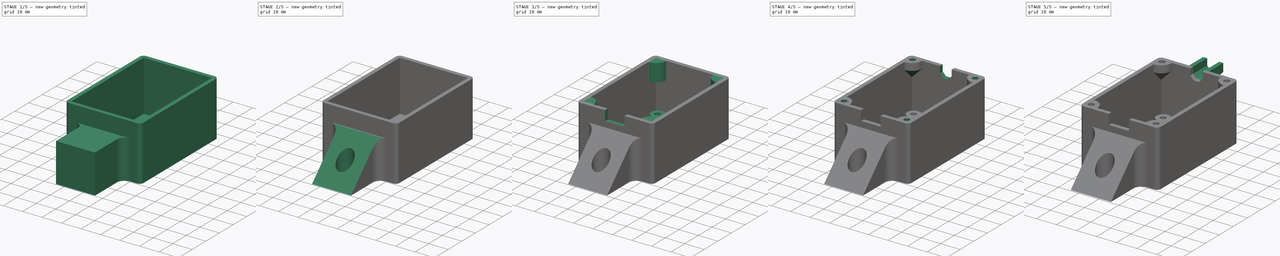
[diagram: build sequence overview — one tinted view per stage of 5, left to right]
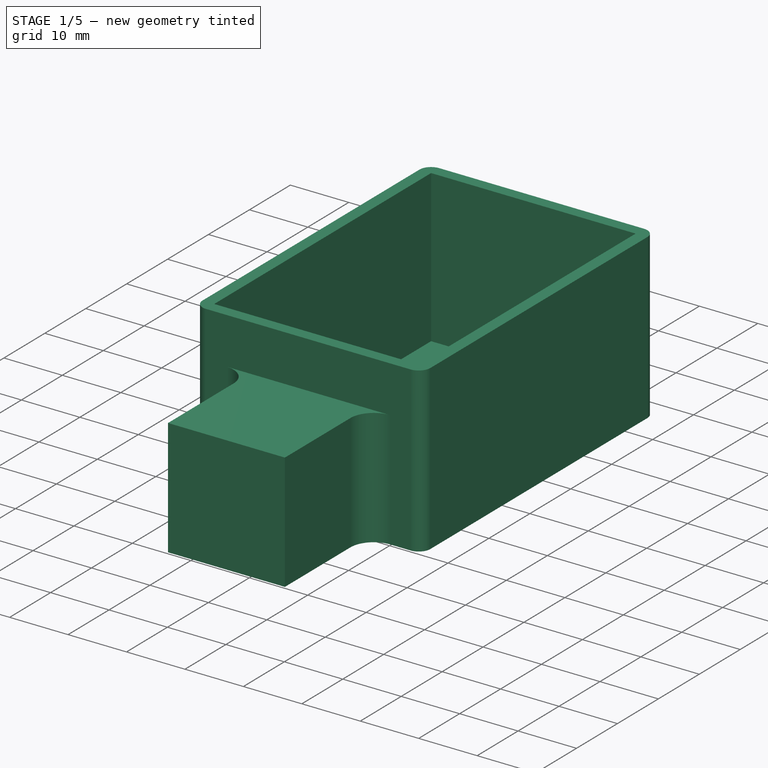
[diagram: stage 1 of 5 — iso view after this stage's code; geometry added in this stage tinted green]
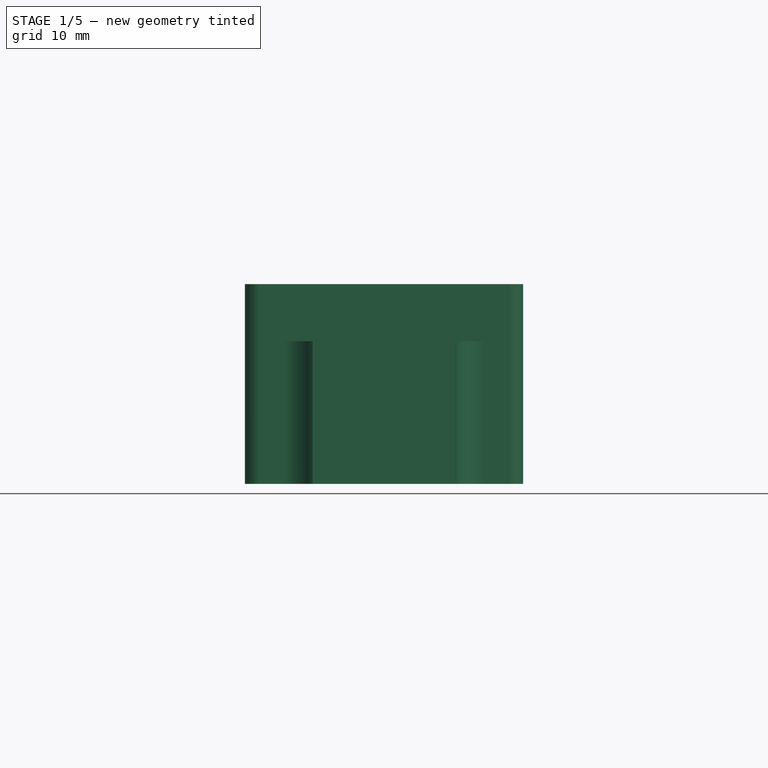
[diagram: stage 1 of 5 — front view after this stage's code; geometry added in this stage tinted green]
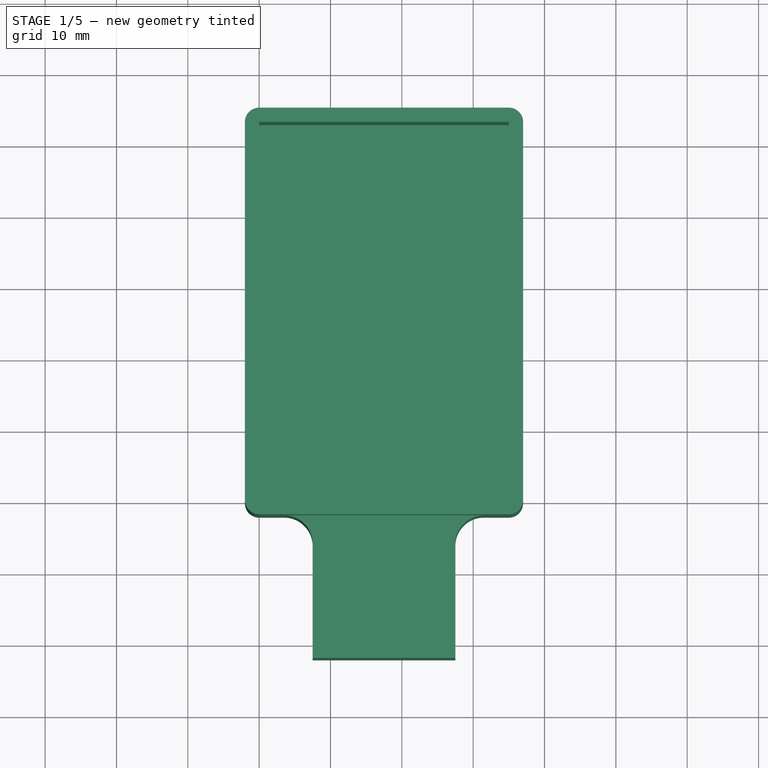
[diagram: stage 1 of 5 — top view after this stage's code; geometry added in this stage tinted green]
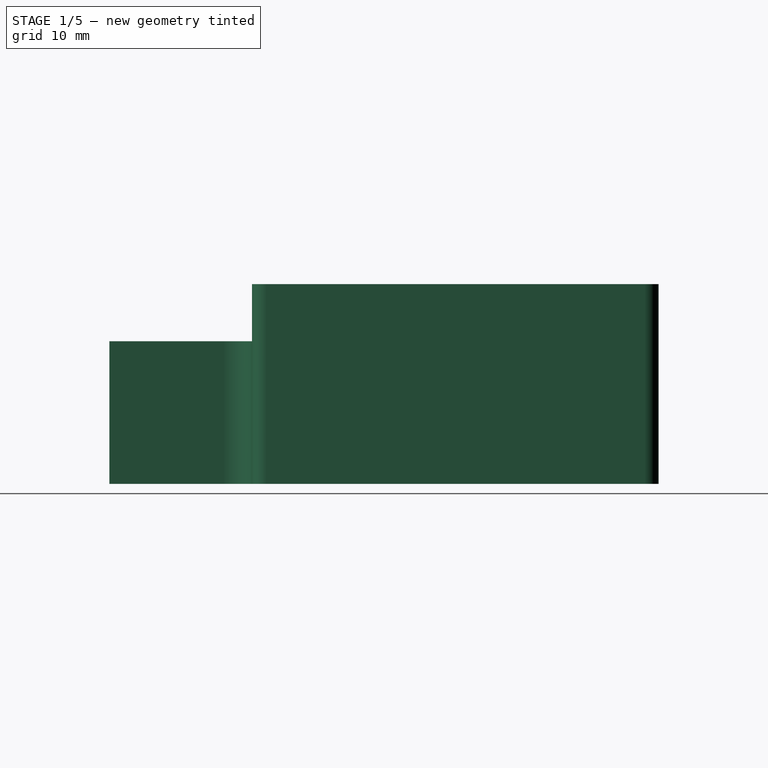
[diagram: stage 1 of 5 — right view after this stage's code; geometry added in this stage tinted green]
FCSTD DOCUMENT  (FreeCAD 0.18.3R)
Label: Laser PCB Box
License: All rights reserved
LicenseURL: http://en.wikipedia.org/wiki/All_rights_reserved
objects: Sketcher::SketchObject×15, PartDesign::Pocket×8, PartDesign::Pad×7, PartDesign::Plane×2, Spreadsheet::Sheet×1, PartDesign::Chamfer×1, PartDesign::Body×1
note: 49 computed .brp shape members not serialized (recipe doc carries the construction recipe); baked Part::Feature solids carry a one-line shape summary decoded from their .brp

FEATURE [Sketcher::SketchObject] Sketch  label="Sketch Base"
  MapMode = 5
  Support = -> [XY_Plane]
  sketch-geometry (4):
    g0: LineSegment StartX=0 StartY=0 StartZ=0 EndX=35 EndY=0 EndZ=0
    g1: LineSegment StartX=35 StartY=0 StartZ=0 EndX=35 EndY=53 EndZ=0
    g2: LineSegment StartX=35 StartY=53 StartZ=0 EndX=0 EndY=53 EndZ=0
    g3: LineSegment StartX=0 StartY=53 StartZ=0 EndX=0 EndY=0 EndZ=0
  constraints (11):
    c: Coincident(g0,g1)
    c: Coincident(g1,g2)
    c: Coincident(g2,g3)
    c: Coincident(g3,g0)
    c: Horizontal(g0)
    c: Horizontal(g2)
    c: Vertical(g1)
    c: Vertical(g3)
    c: Coincident(g0,g-1)
    c: Distance(g0) = 35
    c: Distance(g1) = 53
FEATURE [PartDesign::Pad] Pad  label="Base"
  Length = 2
  Length2 = 100
  Profile = -> Sketch
  Type = 0
FEATURE [Sketcher::SketchObject] Sketch001  label="Sketch Wall"
  ExternalGeometry = -> [Pad]
  MapMode = 5
  Support = -> [XY_Plane]
  sketch-geometry (12):
    g0: LineSegment StartX=0 StartY=0 StartZ=0 EndX=35 EndY=0 EndZ=0
    g1: LineSegment StartX=35 StartY=0 StartZ=0 EndX=35 EndY=53 EndZ=0
    g2: LineSegment StartX=35 StartY=53 StartZ=0 EndX=0 EndY=53 EndZ=0
    g3: LineSegment StartX=0 StartY=53 StartZ=0 EndX=0 EndY=0 EndZ=0
    g4: ArcOfCircle CenterX=0 CenterY=53 CenterZ=0 NormalX=0 NormalY=0 NormalZ=1 AngleXU=0 Radius=2 StartAngle=1.5708 EndAngle=3.14159
    g5: ArcOfCircle CenterX=35 CenterY=53 CenterZ=0 NormalX=0 NormalY=0 NormalZ=1 AngleXU=0 Radius=2 StartAngle=-9e-16 EndAngle=1.5708
    g6: ArcOfCircle CenterX=35 CenterY=0 CenterZ=0 NormalX=0 NormalY=0 NormalZ=1 AngleXU=0 Radius=2 StartAngle=4.71239 EndAngle=6.28319
    g7: ArcOfCircle CenterX=0 CenterY=0 CenterZ=0 NormalX=0 NormalY=0 NormalZ=1 AngleXU=0 Radius=2 StartAngle=3.14159 EndAngle=4.71239
    g8: LineSegment StartX=-4e-16 StartY=-2 StartZ=0 EndX=35 EndY=-2 EndZ=0
    g9: LineSegment StartX=37 StartY=-5e-16 StartZ=0 EndX=37 EndY=53 EndZ=0
    g10: LineSegment StartX=35 StartY=55 StartZ=0 EndX=0 EndY=55 EndZ=0
    g11: LineSegment StartX=-2 StartY=53 StartZ=0 EndX=-2 EndY=0 EndZ=0
  constraints (31):
    c: Coincident(g0,g1)
    c: Coincident(g1,g2)
    c: Coincident(g2,g3)
    c: Coincident(g3,g0)
    c: Horizontal(g0)
    c: Horizontal(g2)
    c: Vertical(g1)
    c: Vertical(g3)
    c: Coincident(g0,g-1)
    c: Coincident(g1,g-3)
    c: Coincident(g4,g2)
    c: PointOnObject(g4,g-2)
    c: Coincident(g5,g1)
    c: Coincident(g6,g0)
    c: PointOnObject(g6,g-1)
    c: Coincident(g7,g0)
    c: PointOnObject(g7,g-2)
    c: PointOnObject(g7,g-1)
    c: Coincident(g8,g7)
    c: Coincident(g8,g6)
    c: Horizontal(g8)
    c: Coincident(g9,g6)
    c: Vertical(g9)
    c: Coincident(g10,g4)
    c: Horizontal(g10)
    c: Coincident(g11,g7)
    c: Vertical(g11)
    c: Tangent(g11,g4) = -1.5708
    c: Tangent(g10,g5) = -1.5708
    c: Tangent(g9,g5) = -1.5708
    c: Distance(g0,g11) = 2
FEATURE [PartDesign::Pad] Pad001  label="Wall"
  BaseFeature = -> Pad
  Length = 28
  Length2 = 100
  Profile = -> Sketch001
  Type = 0
FEATURE [Sketcher::SketchObject] Sketch002  label="Sketch Mount Pad"
  ExternalGeometry = -> [Pad001]
  MapMode = 5
  Support = -> [XY_Plane]
  sketch-geometry (8):
    g0: LineSegment StartX=3.50001 StartY=-2 StartZ=0 EndX=31.5 EndY=-2 EndZ=0
    g1: ArcOfCircle CenterX=3.50001 CenterY=-6 CenterZ=0 NormalX=0 NormalY=0 NormalZ=1 AngleXU=0 Radius=4 StartAngle=0 EndAngle=1.5708
    g2: ArcOfCircle CenterX=31.5 CenterY=-6 CenterZ=0 NormalX=0 NormalY=0 NormalZ=1 AngleXU=0 Radius=4 StartAngle=1.5708 EndAngle=3.14159
    g3: LineSegment StartX=7.50001 StartY=-6 StartZ=0 EndX=7.50001 EndY=-22 EndZ=0
    g4: LineSegment StartX=7.50001 StartY=-22 StartZ=0 EndX=27.5 EndY=-22 EndZ=0
    g5: LineSegment StartX=27.5 StartY=-22 StartZ=0 EndX=27.5 EndY=-6 EndZ=0
    g6: LineSegment [constr] StartX=-4e-16 StartY=-2 StartZ=0 EndX=3.50001 EndY=-2 EndZ=0
    g7: LineSegment [constr] StartX=31.5 StartY=-2 StartZ=0 EndX=35 EndY=-2 EndZ=0
  constraints (23):
    c: PointOnObject(g0,g-3)
    c: PointOnObject(g0,g-3)
    c: Coincident(g1,g0)
    c: Coincident(g2,g0)
    c: Vertical(g0,g1)
    c: Vertical(g0,g2)
    c: Horizontal(g2,g2)
    c: Horizontal(g2,g1)
    c: Horizontal(g1,g1)
    c: Tangent(g1,g3) = 1.5708
    c: Coincident(g3,g4)
    c: Horizontal(g4)
    c: Coincident(g4,g5)
    c: Coincident(g5,g2)
    c: Vertical(g5)
    c: Distance(g4) = 20
    c: Radius(g1) = 4
    c: Coincident(g6,g-3)
    c: Coincident(g6,g0)
    c: Coincident(g7,g0)
    c: Coincident(g7,g-3)
    c: Equal(g6,g7)
    c: Distance(g4,g0) = 20
FEATURE [PartDesign::Pad] Pad002  label="Mount Pad"
  BaseFeature = -> Pad001
  Length = 20
  Length2 = 100
  Profile = -> Sketch002
  Type = 0
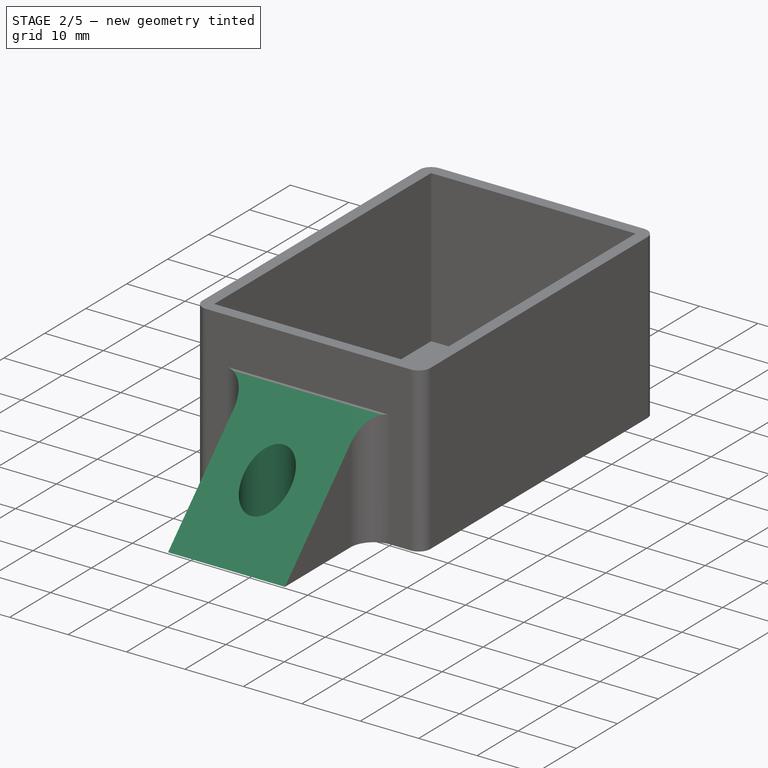
[diagram: stage 2 of 5 — iso view after this stage's code; geometry added in this stage tinted green]
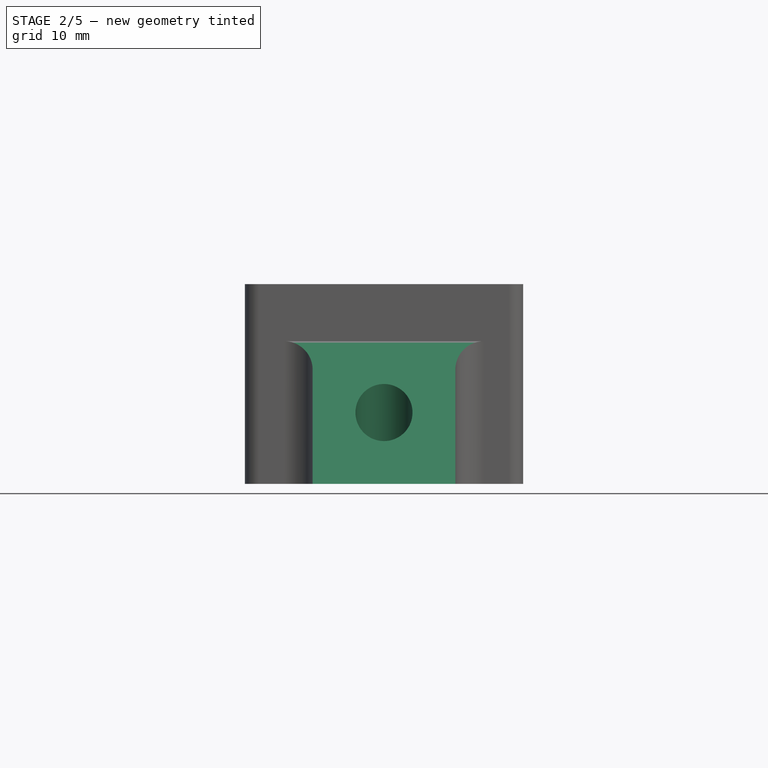
[diagram: stage 2 of 5 — front view after this stage's code; geometry added in this stage tinted green]
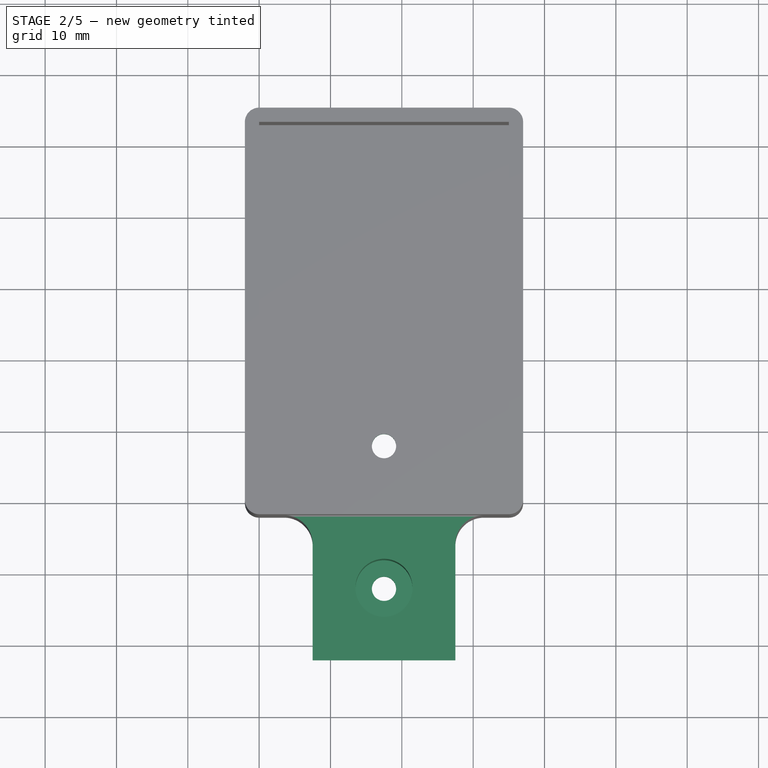
[diagram: stage 2 of 5 — top view after this stage's code; geometry added in this stage tinted green]
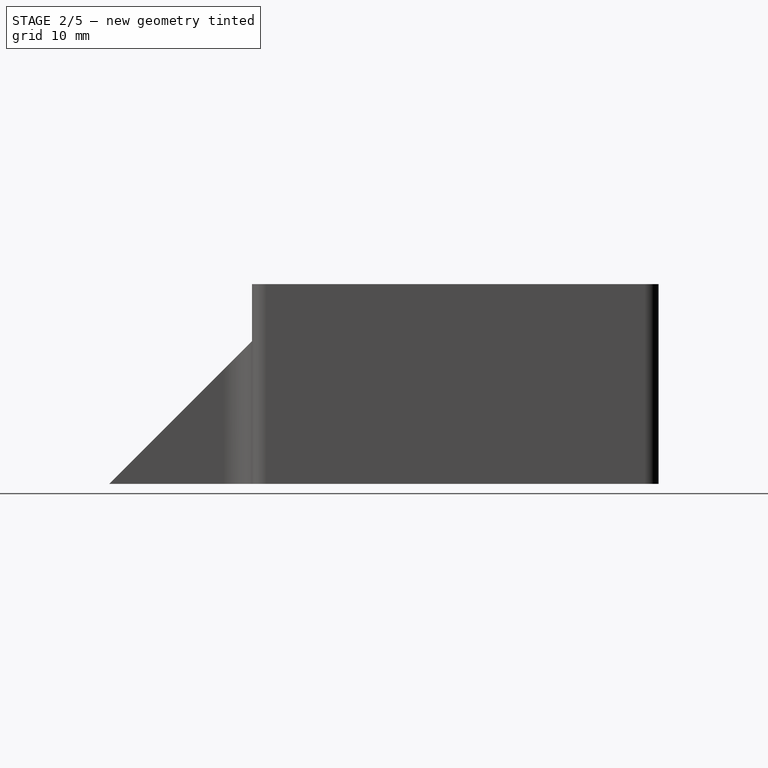
[diagram: stage 2 of 5 — right view after this stage's code; geometry added in this stage tinted green]
FEATURE [Sketcher::SketchObject] Sketch003  label="Sketch Mount Angled Cut"
  ExternalGeometry = -> [Pad002]
  MapMode = 5
  Placement = pos=(-2,0,0) rot=(0.57735,-0.57735,-0.57735;2.0944rad)
  Support = -> [Pad002]
  sketch-geometry (3):
    g0: LineSegment StartX=22 StartY=0 StartZ=0 EndX=22 EndY=20 EndZ=0
    g1: LineSegment StartX=22 StartY=20 StartZ=0 EndX=2 EndY=20 EndZ=0
    g2: LineSegment StartX=2 StartY=20 StartZ=0 EndX=22 EndY=0 EndZ=0
  constraints (7):
    c: Coincident(g-3,g0)
    c: Coincident(g0,g-3)
    c: Coincident(g0,g1)
    c: Coincident(g2,g0)
    c: Angle(g2,g-1) = 0.785398
    c: Coincident(g2,g1)
    c: Coincident(g1,g-4)
FEATURE [PartDesign::Pocket] Pocket  label="Mount Angled Cut"
  BaseFeature = -> Pad002
  Length = 5
  Length2 = 100
  Profile = -> Sketch003
  Type = 1
FEATURE [Sketcher::SketchObject] Sketch004  label="Sketch Mount Holes"
  ExternalGeometry = -> [Pocket]
  MapMode = 5
  Placement = pos=(0,0,0) rot=(1,0,0;3.14159rad)
  Support = -> [Pocket]
  expr: Constraints[7] = Screws.m3tD
  sketch-geometry (3):
    g0: Circle CenterX=17.5 CenterY=12 CenterZ=0 NormalX=0 NormalY=0 NormalZ=1 AngleXU=0 Radius=1.7
    g1: Circle CenterX=17.5 CenterY=-8 CenterZ=0 NormalX=0 NormalY=0 NormalZ=1 AngleXU=0 Radius=1.7
    g2: LineSegment [constr] StartX=17.5 StartY=12 StartZ=0 EndX=17.5 EndY=22 EndZ=0
  constraints (8):
    c: Equal(g1,g0)
    c: Vertical(g1,g0)
    c: Coincident(g2,g0)
    c: PointOnObject(g2,g-3)
    c: Symmetric(g-3,g-3,g2)
    c: Distance(g2) = 10
    c: Distance(g1,g-3) = 30
    c: Diameter(g1) = 3.4
FEATURE [PartDesign::Pocket] Pocket001  label="Mount Holes"
  BaseFeature = -> Pocket
  Length = 5
  Length2 = 100
  Profile = -> Sketch004
  Type = 1
FEATURE [Sketcher::SketchObject] Sketch005  label="Sketch Screw Head Cut"
  ExternalGeometry = -> [Pocket001]
  MapMode = 5
  Placement = pos=(0,0,28) rot=(0,0,1;0rad)
  Support = -> [Pocket001]
  sketch-geometry (1):
    g0: Circle CenterX=17.5 CenterY=-12 CenterZ=0 NormalX=0 NormalY=0 NormalZ=1 AngleXU=0 Radius=4
  constraints (2):
    c: Coincident(g0,g-3)
    c: Diameter(g0) = 8
FEATURE [PartDesign::Pocket] Pocket002  label="Screw Head Cut"
  BaseFeature = -> Pocket001
  Length = 26
  Length2 = 100
  Profile = -> Sketch005
  Type = 0
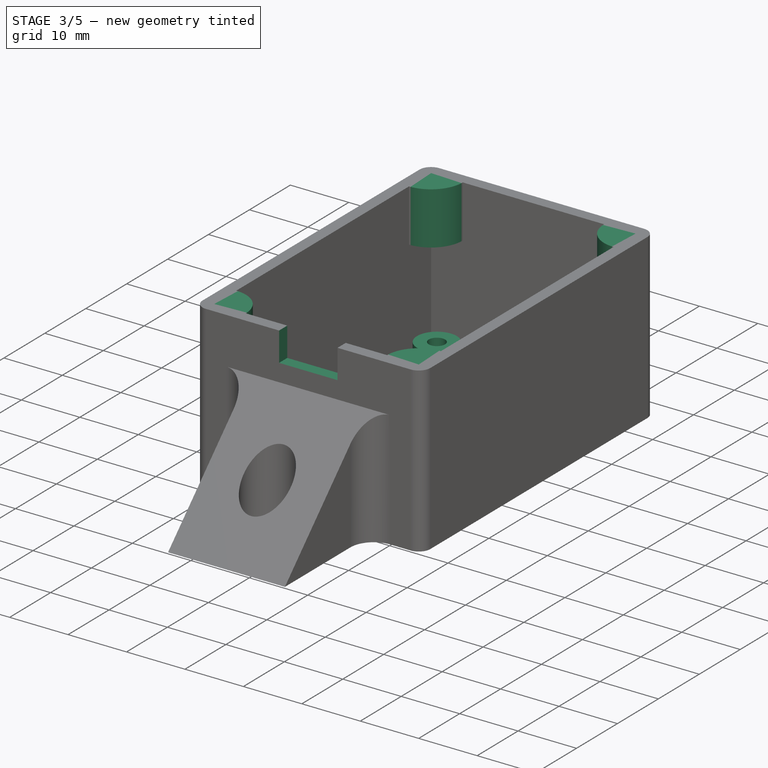
[diagram: stage 3 of 5 — iso view after this stage's code; geometry added in this stage tinted green]
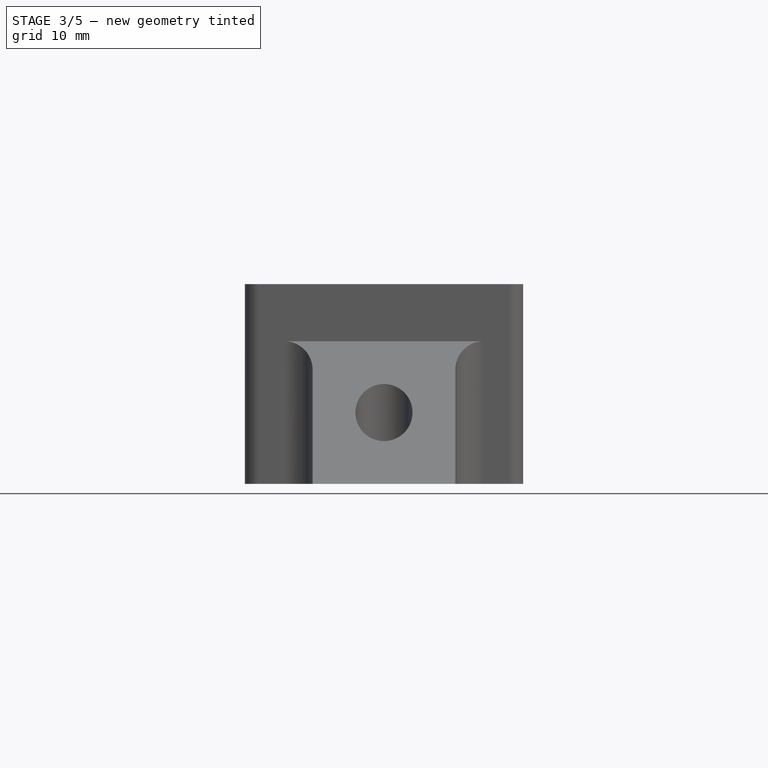
[diagram: stage 3 of 5 — front view after this stage's code; geometry added in this stage tinted green]
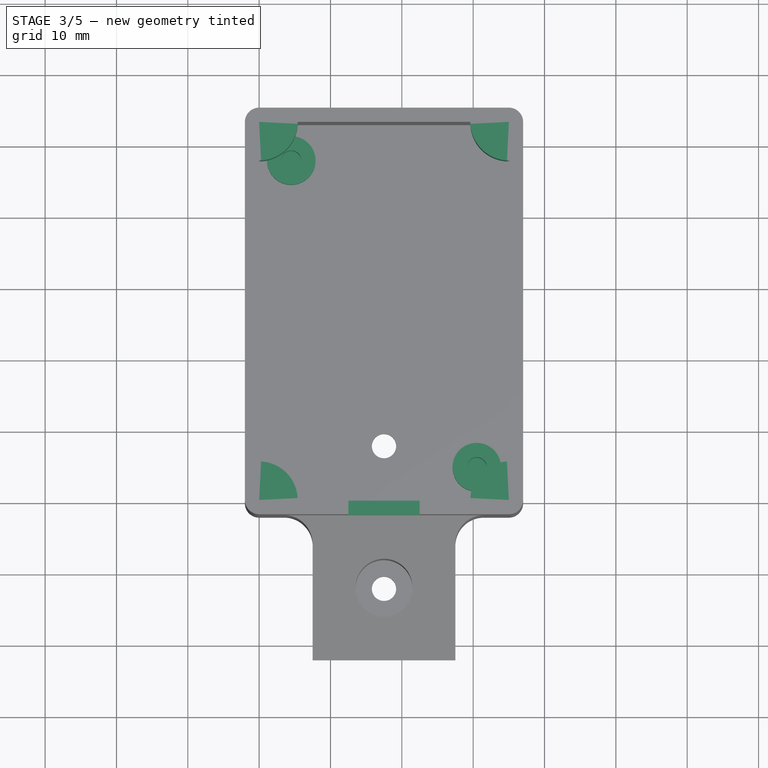
[diagram: stage 3 of 5 — top view after this stage's code; geometry added in this stage tinted green]
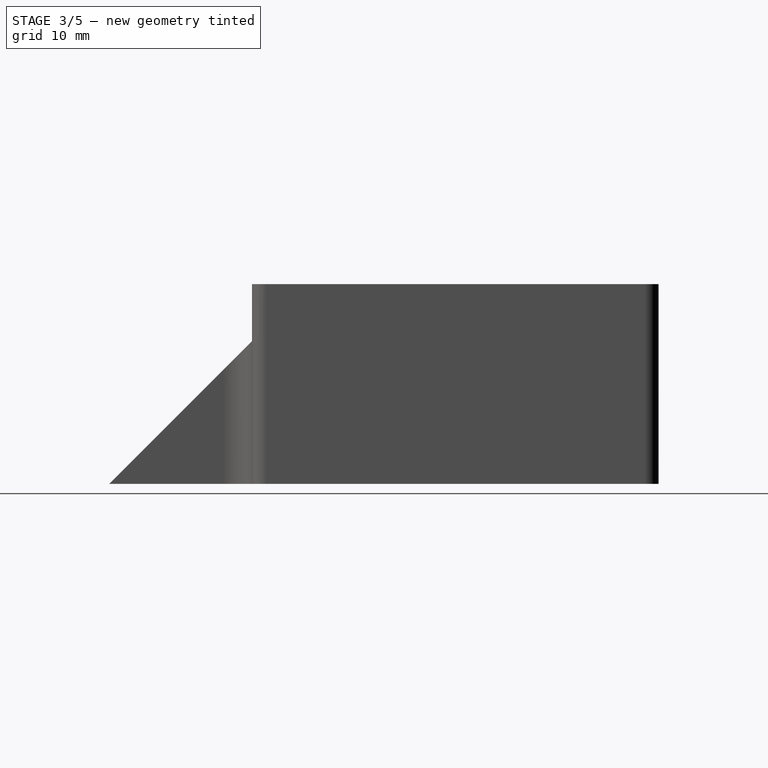
[diagram: stage 3 of 5 — right view after this stage's code; geometry added in this stage tinted green]
FEATURE [Sketcher::SketchObject] Sketch006  label="Sketch PCB Stands"
  ExternalGeometry = -> [Pocket002]
  MapMode = 5
  Placement = pos=(0,0,2) rot=(0,0,1;0rad)
  Support = -> [Pocket002]
  sketch-geometry (6):
    g0: Circle CenterX=4.5 CenterY=48 CenterZ=0 NormalX=0 NormalY=0 NormalZ=1 AngleXU=0 Radius=3.4
    g1: Circle CenterX=30.5 CenterY=5 CenterZ=0 NormalX=0 NormalY=0 NormalZ=1 AngleXU=0 Radius=3.4
    g2: LineSegment [constr] StartX=4.5 StartY=48 StartZ=0 EndX=0 EndY=48 EndZ=0
    g3: LineSegment [constr] StartX=4.5 StartY=48 StartZ=0 EndX=4.5 EndY=53 EndZ=0
    g4: LineSegment [constr] StartX=30.5 StartY=5 StartZ=0 EndX=30.5 EndY=0 EndZ=0
    g5: LineSegment [constr] StartX=30.5 StartY=5 StartZ=0 EndX=35 EndY=5 EndZ=0
  constraints (18):
    c: Coincident(g2,g0)
    c: PointOnObject(g2,g-2)
    c: Horizontal(g2)
    c: Coincident(g3,g0)
    c: PointOnObject(g3,g-3)
    c: Vertical(g3)
    c: Coincident(g4,g1)
    c: PointOnObject(g4,g-4)
    c: Vertical(g4)
    c: Coincident(g5,g1)
    c: PointOnObject(g5,g-5)
    c: Horizontal(g5)
    c: Equal(g2,g5)
    c: Equal(g3,g4)
    c: DistanceY(g1,g0) = 43
    c: Equal(g1,g0)
    c: DistanceX(g0,g1) = 26
    c: Diameter(g0) = 6.8
FEATURE [PartDesign::Pad] Pad003  label="PCB Stands"
  BaseFeature = -> Pocket002
  Length = 3
  Length2 = 100
  Profile = -> Sketch006
  Type = 0
FEATURE [Sketcher::SketchObject] Sketch007  label="Sketch PCB Holes"
  ExternalGeometry = -> [Pad003]
  MapMode = 5
  Placement = pos=(0,0,5) rot=(0,0,1;0rad)
  Support = -> [Pad003]
  expr: Constraints[3] = Screws.m3d
  sketch-geometry (2):
    g0: Circle CenterX=4.5 CenterY=48 CenterZ=0 NormalX=0 NormalY=0 NormalZ=1 AngleXU=0 Radius=1.4
    g1: Circle CenterX=30.5 CenterY=5 CenterZ=0 NormalX=0 NormalY=0 NormalZ=1 AngleXU=0 Radius=1.4
  constraints (4):
    c: Coincident(g0,g-3)
    c: Coincident(g1,g-4)
    c: Equal(g0,g1)
    c: Diameter(g0) = 2.8
FEATURE [PartDesign::Pocket] Pocket003  label="PCB Holes"
  BaseFeature = -> Pad003
  Length = 4.8
  Length2 = 100
  Profile = -> Sketch007
  Type = 0
FEATURE [Sketcher::SketchObject] Sketch008  label="Sketch Wiring Cut Bottom"
  ExternalGeometry = -> [Pocket003]
  MapMode = 5
  Placement = pos=(0,-2,0) rot=(1,0,0;1.5708rad)
  Support = -> [Pocket003]
  sketch-geometry (6):
    g0: LineSegment StartX=12.5 StartY=28 StartZ=0 EndX=22.5 EndY=28 EndZ=0
    g1: LineSegment StartX=22.5 StartY=28 StartZ=0 EndX=22.5 EndY=23 EndZ=0
    g2: LineSegment StartX=22.5 StartY=23 StartZ=0 EndX=12.5 EndY=23 EndZ=0
    g3: LineSegment StartX=12.5 StartY=23 StartZ=0 EndX=12.5 EndY=28 EndZ=0
    g4: LineSegment [constr] StartX=-4e-16 StartY=28 StartZ=0 EndX=12.5 EndY=28 EndZ=0
    g5: LineSegment [constr] StartX=22.5 StartY=28 StartZ=0 EndX=35 EndY=28 EndZ=0
  constraints (16):
    c: Coincident(g0,g1)
    c: Coincident(g1,g2)
    c: Coincident(g2,g3)
    c: Coincident(g3,g0)
    c: Horizontal(g0)
    c: Horizontal(g2)
    c: Vertical(g1)
    c: Vertical(g3)
    c: PointOnObject(g0,g-3)
    c: Coincident(g4,g-3)
    c: Coincident(g4,g0)
    c: Coincident(g5,g0)
    c: Coincident(g5,g-3)
    c: Equal(g4,g5)
    c: Distance(g3) = 5
    c: Distance(g2) = 10
FEATURE [PartDesign::Pocket] Pocket004  label="Wiring Cut Bottom"
  BaseFeature = -> Pocket003
  Length = 5
  Length2 = 100
  Profile = -> Sketch008
  Type = 0
FEATURE [Sketcher::SketchObject] Sketch009  label="Sketch Lid Mount Pads"
  ExternalGeometry = -> [Pocket004]
  MapMode = 5
  Placement = pos=(0,0,28) rot=(0,0,1;0rad)
  Support = -> [Pocket004]
  sketch-geometry (12):
    g0: ArcOfCircle CenterX=0 CenterY=53 CenterZ=0 NormalX=0 NormalY=0 NormalZ=1 AngleXU=0 Radius=5.4 StartAngle=4.71239 EndAngle=6.28319
    g1: ArcOfCircle CenterX=35 CenterY=0 CenterZ=0 NormalX=0 NormalY=0 NormalZ=1 AngleXU=0 Radius=5.4 StartAngle=1.5708 EndAngle=3.14159
    g2: LineSegment StartX=29.6 StartY=0 StartZ=0 EndX=35 EndY=0 EndZ=0
    g3: LineSegment StartX=35 StartY=0 StartZ=0 EndX=35 EndY=5.4 EndZ=0
    g4: LineSegment StartX=-1e-15 StartY=47.6 StartZ=0 EndX=0 EndY=53 EndZ=0
    g5: LineSegment StartX=0 StartY=53 StartZ=0 EndX=5.4 EndY=53 EndZ=0
    g6: LineSegment StartX=29.6 StartY=53 StartZ=0 EndX=35 EndY=53 EndZ=0
    g7: LineSegment StartX=35 StartY=53 StartZ=0 EndX=35 EndY=47.6 EndZ=0
    g8: LineSegment StartX=5.4 StartY=0 StartZ=0 EndX=0 EndY=0 EndZ=0
    g9: LineSegment StartX=0 StartY=0 StartZ=0 EndX=0 EndY=5.4 EndZ=0
    g10: ArcOfCircle CenterX=0 CenterY=0 CenterZ=0 NormalX=0 NormalY=0 NormalZ=1 AngleXU=0 Radius=5.4 StartAngle=0 EndAngle=1.5708
    g11: ArcOfCircle CenterX=35 CenterY=53 CenterZ=0 NormalX=0 NormalY=0 NormalZ=1 AngleXU=0 Radius=5.4 StartAngle=3.14159 EndAngle=4.71239
  constraints (32):
    c: PointOnObject(g0,g-2)
    c: Vertical(g1,g1)
    c: Equal(g0,g1)
    c: Coincident(g1,g2)
    c: Coincident(g2,g3)
    c: Coincident(g3,g1)
    c: Coincident(g0,g4)
    c: Coincident(g4,g5)
    c: Coincident(g5,g0)
    c: Radius(g0) = 5.4
    c: Coincident(g4,g0)
    c: Coincident(g6,g7)
    c: Vertical(g7)
    c: PointOnObject(g8,g-1)
    c: Coincident(g8,g-1)
    c: Coincident(g8,g9)
    c: PointOnObject(g9,g-2)
    c: Coincident(g10,g8)
    c: Coincident(g10,g8)
    c: Coincident(g10,g9)
    c: Coincident(g11,g6)
    c: Coincident(g11,g7)
    c: Coincident(g11,g6)
    c: Equal(g10,g11)
    c: Equal(g11,g0)
    c: Coincident(g1,g2)
    c: Coincident(g1,g-4)
    c: Horizontal(g2)
    c: Coincident(g0,g-3)
    c: Horizontal(g5)
    c: Coincident(g6,g-4)
    c: Horizontal(g6)
FEATURE [PartDesign::Pad] Pad004  label="Lid Mount Pads"
  BaseFeature = -> Pocket004
  Length = 9
  Length2 = 100
  Profile = -> Sketch009
  Reversed = true
  Type = 0
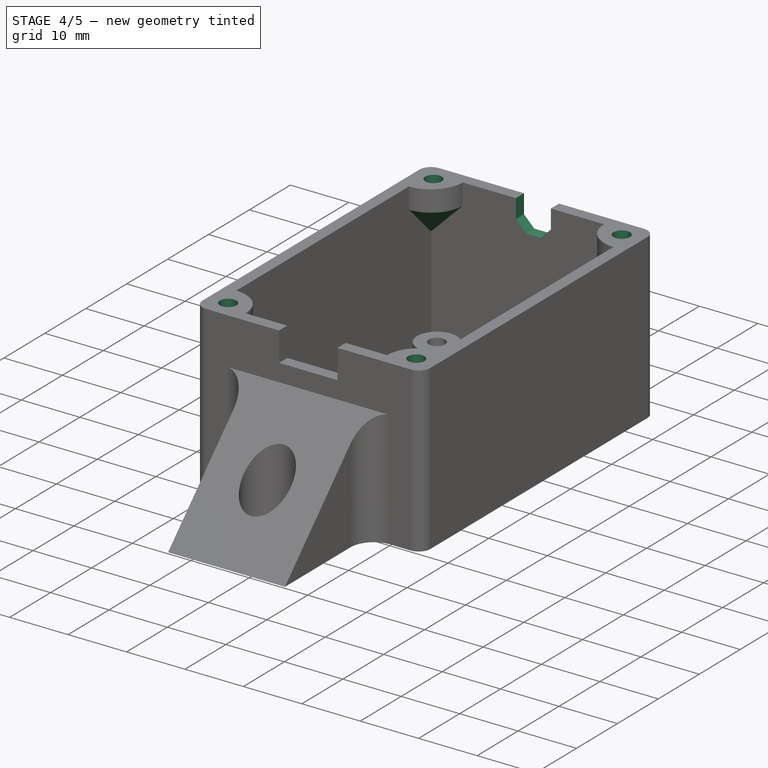
[diagram: stage 4 of 5 — iso view after this stage's code; geometry added in this stage tinted green]
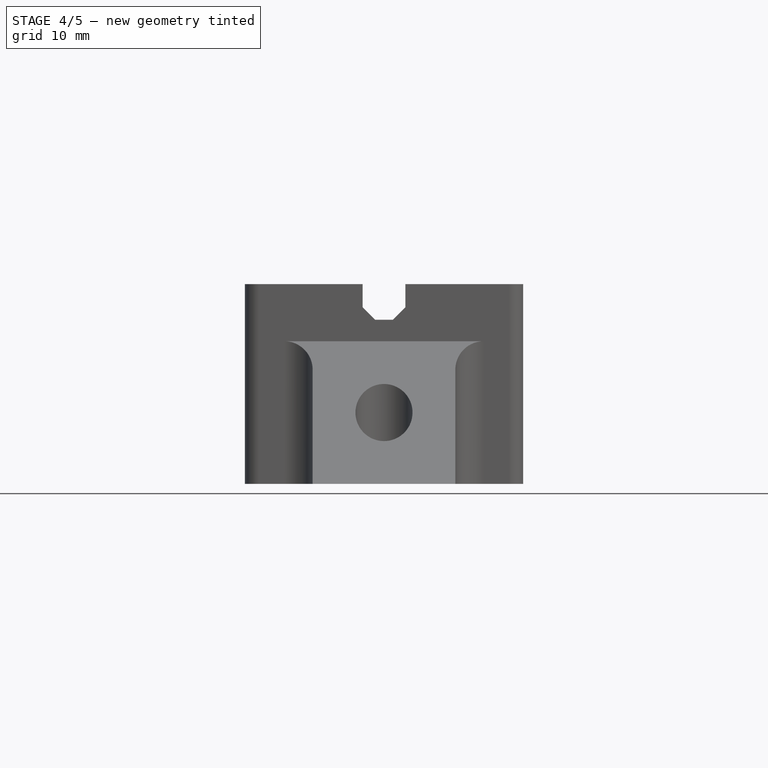
[diagram: stage 4 of 5 — front view after this stage's code; geometry added in this stage tinted green]
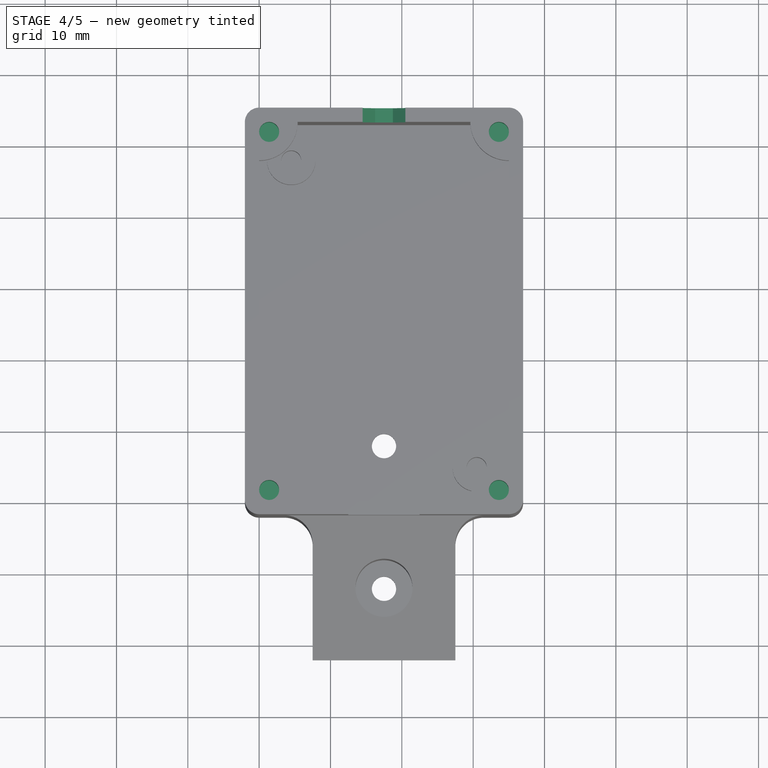
[diagram: stage 4 of 5 — top view after this stage's code; geometry added in this stage tinted green]
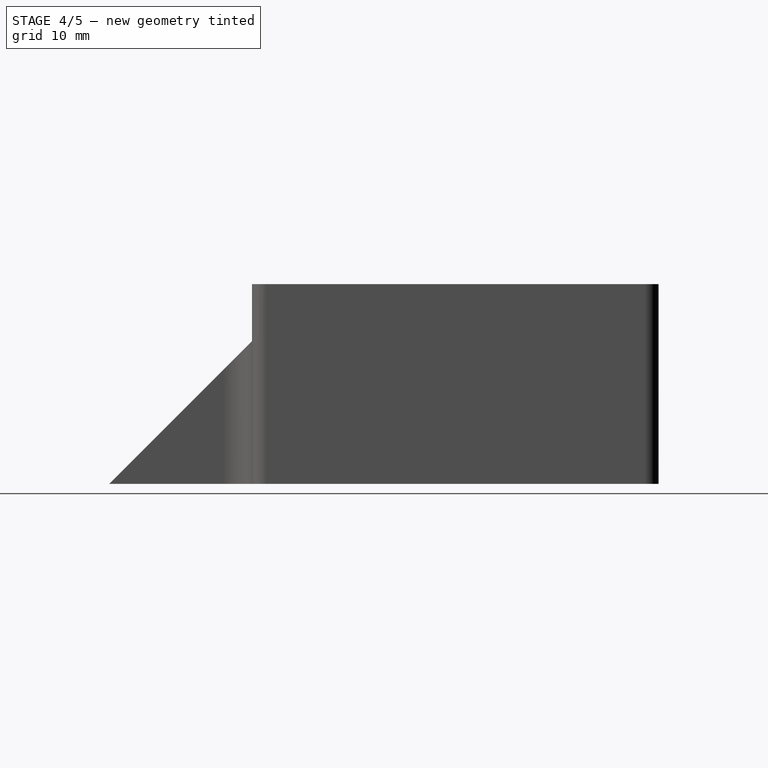
[diagram: stage 4 of 5 — right view after this stage's code; geometry added in this stage tinted green]
FEATURE [Sketcher::SketchObject] Sketch010  label="Sketch Lid Holes"
  ExternalGeometry = -> [Pad004]
  MapMode = 5
  Placement = pos=(0,0,28) rot=(0,0,1;0rad)
  Support = -> [Pad004]
  expr: Constraints[11] = Screws.m3d
  sketch-geometry (4):
    g0: Circle CenterX=33.6 CenterY=51.6 CenterZ=0 NormalX=0 NormalY=0 NormalZ=1 AngleXU=0 Radius=1.4
    g1: Circle CenterX=33.6 CenterY=1.4 CenterZ=0 NormalX=0 NormalY=0 NormalZ=1 AngleXU=0 Radius=1.4
    g2: Circle CenterX=1.4 CenterY=1.4 CenterZ=0 NormalX=0 NormalY=0 NormalZ=1 AngleXU=0 Radius=1.4
    g3: Circle CenterX=1.4 CenterY=51.6 CenterZ=0 NormalX=0 NormalY=0 NormalZ=1 AngleXU=0 Radius=1.4
  constraints (12):
    c: Equal(g0,g1)
    c: Tangent(g1,g-4)
    c: Tangent(g2,g-2)
    c: Tangent(g2,g-1)
    c: Equal(g3,g2)
    c: Tangent(g0,g-3)
    c: Equal(g1,g2)
    c: Vertical(g1,g0)
    c: Tangent(g3,g-5)
    c: Tangent(g3,g-2)
    c: Horizontal(g0,g3)
    c: Diameter(g3) = 2.8
FEATURE [PartDesign::Pocket] Pocket005  label="Lid Holes"
  BaseFeature = -> Pad004
  Length = 5
  Length2 = 100
  Profile = -> Sketch010
  Type = 0
FEATURE [Spreadsheet::Sheet] Spreadsheet  label="Screws"
  cells = A1=Screw Type; B1=Length; D1=Diameter Loose; F1=Diameter Tight; A2=M3 Tapping; B2=m3tl; C2(m3tl)==12mm; D2=m3tD; E2(m3tD)==3.4mm; F2=m3td; G2(m3td)==2.8mm; A3=M3; B3=m3l; C3(m3l)==30mm; D3=m3D; E3(m3D)==3.2mm; F3=m3d; G3(m3d)==2.8mm
FEATURE [PartDesign::Chamfer] Chamfer  label="Chamfer Lid Mount Pads"
  Base = -> Pocket005 [Edge136,Edge137,Edge135,Edge134]
  BaseFeature = -> Pocket005
  Size = 5.39
FEATURE [Sketcher::SketchObject] Sketch011  label="Sketch Wiring Cut Top"
  ExternalGeometry = -> [Chamfer]
  MapMode = 5
  Placement = pos=(0,55,0) rot=(0,0.707107,0.707107;3.14159rad)
  Support = -> [Chamfer]
  sketch-geometry (8):
    g0: LineSegment StartX=-14.5 StartY=28 StartZ=0 EndX=-20.5 EndY=28 EndZ=0
    g1: LineSegment StartX=-20.5 StartY=28 StartZ=0 EndX=-20.5 EndY=24.7574 EndZ=0
    g2: LineSegment StartX=-20.5 StartY=24.7574 StartZ=0 EndX=-18.7426 EndY=23 EndZ=0
    g3: LineSegment StartX=-18.7426 StartY=23 StartZ=0 EndX=-16.2574 EndY=23 EndZ=0
    g4: LineSegment StartX=-16.2574 StartY=23 StartZ=0 EndX=-14.5 EndY=24.7574 EndZ=0
    g5: LineSegment StartX=-14.5 StartY=24.7574 StartZ=0 EndX=-14.5 EndY=28 EndZ=0
    g6: LineSegment [constr] StartX=-35 StartY=28 StartZ=0 EndX=-20.5 EndY=28 EndZ=0
    g7: LineSegment [constr] StartX=-14.5 StartY=28 StartZ=0 EndX=0 EndY=28 EndZ=0
  constraints (22):
    c: PointOnObject(g0,g-3)
    c: PointOnObject(g0,g-3)
    c: Coincident(g0,g1)
    c: Vertical(g1)
    c: Coincident(g1,g2)
    c: Coincident(g2,g3)
    c: Horizontal(g3)
    c: Coincident(g3,g4)
    c: Coincident(g4,g5)
    c: Coincident(g5,g0)
    c: Vertical(g5)
    c: Horizontal(g1,g4)
    c: Equal(g2,g4)
    c: Coincident(g6,g-3)
    c: Coincident(g6,g0)
    c: Coincident(g7,g0)
    c: Coincident(g7,g-3)
    c: Equal(g6,g7)
    c: DistanceY(g2,g0) = 5
    c: Distance(g0) = 6
    c: Angle(g3,g2) = 2.35619
    c: Equal(g2,g3)
FEATURE [PartDesign::Pocket] Pocket006  label="Wiring Cut Top"
  BaseFeature = -> Chamfer
  Length = 5
  Length2 = 100
  Profile = -> Sketch011
  Type = 0
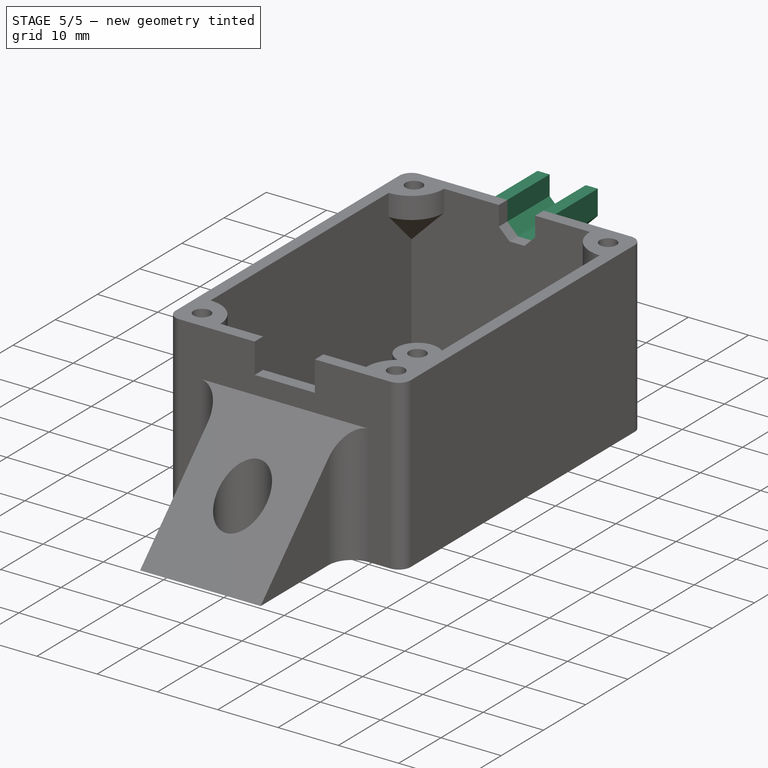
[diagram: stage 5 of 5 — iso view after this stage's code; geometry added in this stage tinted green]
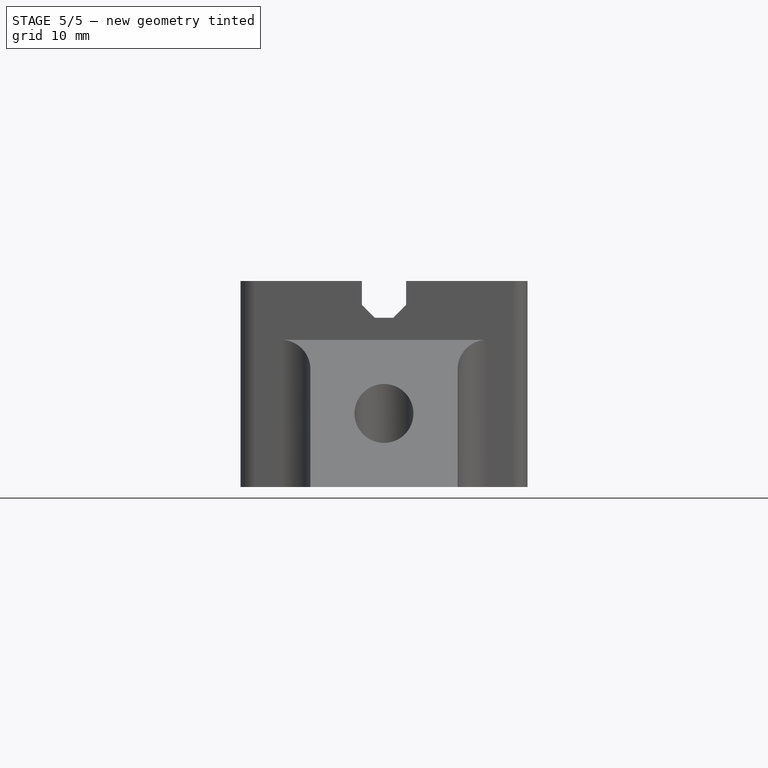
[diagram: stage 5 of 5 — front view after this stage's code; geometry added in this stage tinted green]
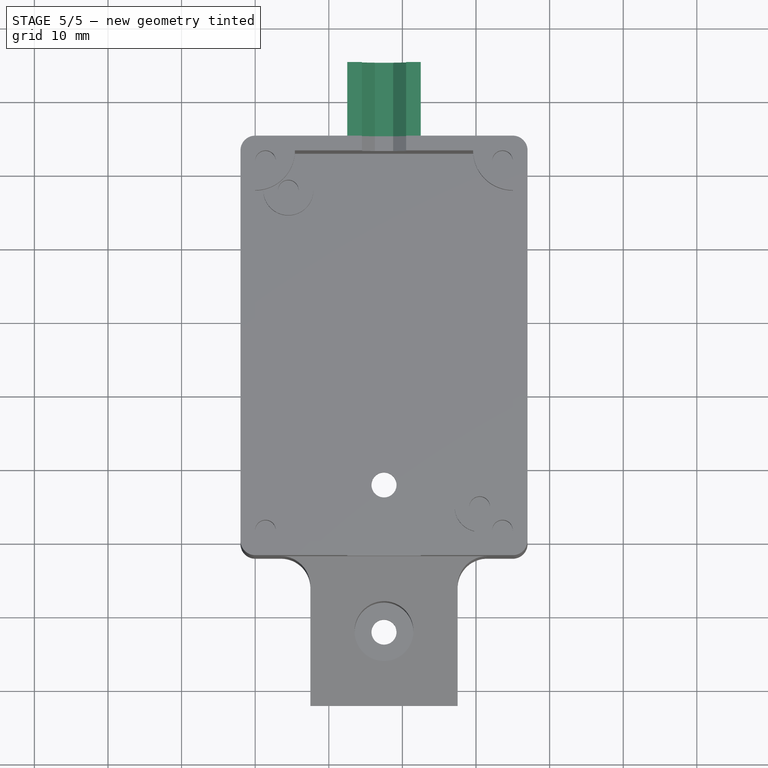
[diagram: stage 5 of 5 — top view after this stage's code; geometry added in this stage tinted green]
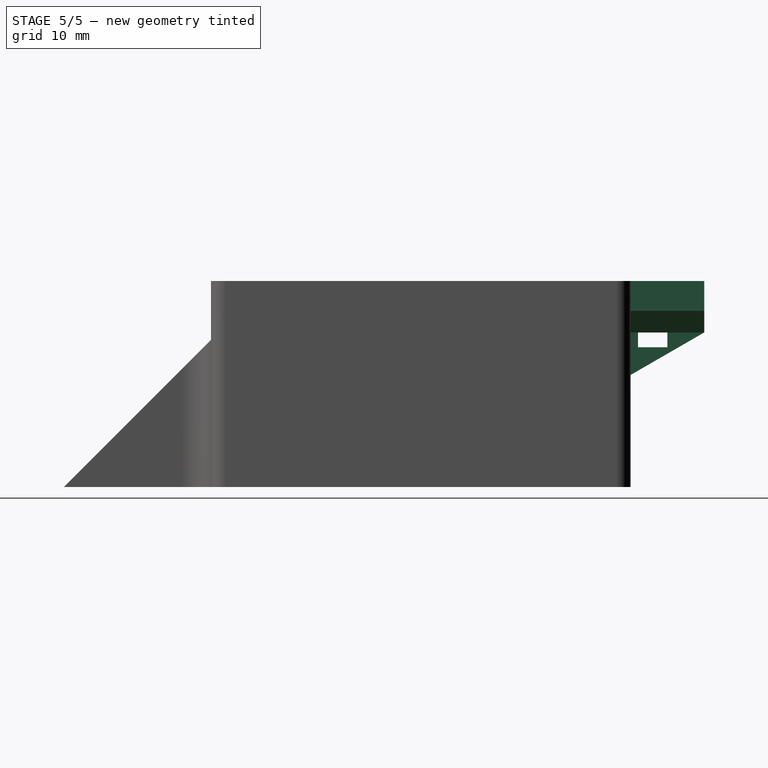
[diagram: stage 5 of 5 — right view after this stage's code; geometry added in this stage tinted green]
FEATURE [Sketcher::SketchObject] Sketch012  label="Sketch Wiring Support Top"
  ExternalGeometry = -> [Pocket006]
  MapMode = 5
  Placement = pos=(0,55,0) rot=(0,0.707107,0.707107;3.14159rad)
  Support = -> [Pocket006]
  sketch-geometry (14):
    g0: LineSegment StartX=-20.5 StartY=28 StartZ=0 EndX=-20.5 EndY=24.7574 EndZ=0
    g1: LineSegment StartX=-20.5 StartY=24.7574 StartZ=0 EndX=-18.7426 EndY=23 EndZ=0
    g2: LineSegment StartX=-18.7426 StartY=23 StartZ=0 EndX=-16.2574 EndY=23 EndZ=0
    g3: LineSegment StartX=-16.2574 StartY=23 StartZ=0 EndX=-14.5 EndY=24.7574 EndZ=0
    g4: LineSegment StartX=-14.5 StartY=24.7574 StartZ=0 EndX=-14.5 EndY=28 EndZ=0
    g5: LineSegment StartX=-14.5 StartY=28 StartZ=0 EndX=-12.5 EndY=28 EndZ=0
    g6: LineSegment StartX=-12.5 StartY=28 StartZ=0 EndX=-12.5 EndY=23.9289 EndZ=0
    g7: LineSegment StartX=-12.5 StartY=23.9289 StartZ=0 EndX=-15.4289 EndY=21 EndZ=0
    g8: LineSegment StartX=-15.4289 StartY=21 StartZ=0 EndX=-19.5711 EndY=21 EndZ=0
    g9: LineSegment StartX=-19.5711 StartY=21 StartZ=0 EndX=-22.5 EndY=23.9289 EndZ=0
    g10: LineSegment StartX=-22.5 StartY=23.9289 StartZ=0 EndX=-22.5 EndY=28 EndZ=0
    g11: LineSegment StartX=-22.5 StartY=28 StartZ=0 EndX=-20.5 EndY=28 EndZ=0
    g12: LineSegment [constr] StartX=-20.5 StartY=24.7574 StartZ=0 EndX=-21.9142 EndY=23.3431 EndZ=0
    g13: LineSegment [constr] StartX=-18.7426 StartY=23 StartZ=0 EndX=-18.7426 EndY=21 EndZ=0
  constraints (36):
    c: Coincident(g-3,g0)
    c: Coincident(g0,g-3)
    c: Coincident(g0,g1)
    c: Coincident(g1,g-5)
    c: Coincident(g1,g2)
    c: Coincident(g2,g-5)
    c: Coincident(g2,g3)
    c: Coincident(g3,g-4)
    c: Coincident(g3,g4)
    c: Coincident(g4,g-4)
    c: Coincident(g4,g5)
    c: Horizontal(g5)
    c: Coincident(g5,g6)
    c: Vertical(g6)
    c: Coincident(g6,g7)
    c: Coincident(g7,g8)
    c: Horizontal(g8)
    c: Coincident(g8,g9)
    c: Coincident(g9,g10)
    c: Vertical(g10)
    c: Coincident(g10,g11)
    c: Coincident(g11,g0)
    c: Horizontal(g11)
    c: Parallel(g9,g1)
    c: Equal(g11,g5)
    c: Equal(g10,g6)
    c: Equal(g9,g7)
    c: Coincident(g12,g0)
    c: PointOnObject(g12,g9)
    c: Coincident(g13,g1)
    c: PointOnObject(g13,g8)
    c: Vertical(g13)
    c: Perpendicular(g9,g12)
    c: Equal(g11,g12)
    c: Equal(g12,g13)
    c: Distance(g11) = 2
FEATURE [PartDesign::Pad] Pad005  label="Wiring Support Top"
  BaseFeature = -> Pocket006
  Length = 10
  Length2 = 100
  Profile = -> Sketch012
  Type = 0
FEATURE [PartDesign::Plane] DatumPlane  label="DatumPlane Sketch"
  Length = 98.4996
  MapMode = 7
  Placement = pos=(15.4289,65,21) rot=(0.57735,-0.57735,-0.57735;2.0944rad)
  ResizeMode = 0
  Support = -> [Pad005]
  Width = 49.4996
FEATURE [Sketcher::SketchObject] Sketch013  label="Sketch Pad Support Chamfer"
  ExternalGeometry = -> [Pad005]
  MapMode = 5
  Placement = pos=(15.4289,65,21) rot=(0.57735,-0.57735,-0.57735;2.0944rad)
  Support = -> [DatumPlane]
  sketch-geometry (3):
    g0: LineSegment StartX=0 StartY=0 StartZ=0 EndX=10 EndY=0 EndZ=0
    g1: LineSegment StartX=10 StartY=0 StartZ=0 EndX=10 EndY=-5.7735 EndZ=0
    g2: LineSegment StartX=10 StartY=-5.7735 StartZ=0 EndX=0 EndY=0 EndZ=0
  constraints (8):
    c: Coincident(g-1,g0)
    c: PointOnObject(g0,g-3)
    c: Horizontal(g0)
    c: Coincident(g0,g1)
    c: PointOnObject(g1,g-3)
    c: Coincident(g1,g2)
    c: Coincident(g2,g0)
    c: Angle(g1,g2) = 1.0472
FEATURE [PartDesign::Plane] DatumPlane001  label="DatumPlane UptoFace"
  Length = 98.4996
  MapMode = 7
  Placement = pos=(19.5711,65,21) rot=(0.57735,-0.57735,-0.57735;2.0944rad)
  ResizeMode = 0
  Support = -> [Pad005]
  Width = 49.4996
FEATURE [PartDesign::Pad] Pad006  label="Pad Support Chamfer"
  BaseFeature = -> Pad005
  Length = 10
  Length2 = 100
  Profile = -> Sketch013
  Reversed = true
  Type = 3
  UpToFace = -> DatumPlane001 [Plane]
FEATURE [Sketcher::SketchObject] Sketch014  label="Sketch Zip Cutout"
  ExternalGeometry = -> [Pad006]
  MapMode = 5
  Placement = pos=(15.4289,0,0) rot=(0.57735,-0.57735,-0.57735;2.0944rad)
  Support = -> [Pad006]
  sketch-geometry (4):
    g0: LineSegment StartX=-60 StartY=21 StartZ=0 EndX=-56 EndY=21 EndZ=0
    g1: LineSegment StartX=-56 StartY=21 StartZ=0 EndX=-56 EndY=19 EndZ=0
    g2: LineSegment StartX=-56 StartY=19 StartZ=0 EndX=-60 EndY=19 EndZ=0
    g3: LineSegment StartX=-60 StartY=19 StartZ=0 EndX=-60 EndY=21 EndZ=0
  constraints (12):
    c: Coincident(g0,g1)
    c: Coincident(g1,g2)
    c: Coincident(g2,g3)
    c: Coincident(g3,g0)
    c: Horizontal(g0)
    c: Horizontal(g2)
    c: Vertical(g1)
    c: Vertical(g3)
    c: PointOnObject(g0,g-3)
    c: Distance(g3) = 2
    c: Distance(g2) = 4
    c: Distance(g0,g-3) = 1
FEATURE [PartDesign::Pocket] Pocket007  label="Zip Cutout"
  BaseFeature = -> Pad006
  Length = 5
  Length2 = 100
  Profile = -> Sketch014
  Type = 0
FEATURE [PartDesign::Body] Body  label="Laser PCB Box"
  Group = -> [Sketch,Pad,Sketch001,Pad001,Sketch002,Pad002,Sketch003,Pocket,Sketch004,Pocket001,Sketch005,Pocket002,Sketch006,Pad003,Sketch007,Pocket003,Sketch008,Pocket004,Sketch009,Pad004,Sketch010,Pocket005,Chamfer,Sketch011,Pocket006,Sketch012,Pad005,DatumPlane,Sketch013,DatumPlane001,Pad006,Sketch014,Pocket007]
  Origin = -> Origin
  Tip = -> Pocket007
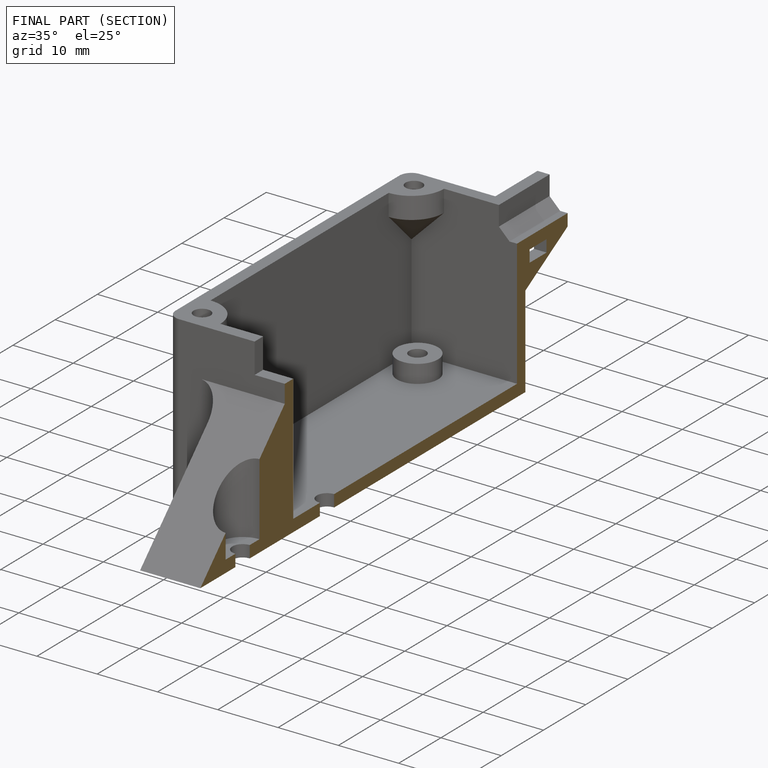
[diagram: finished part — half-section view (interior)]
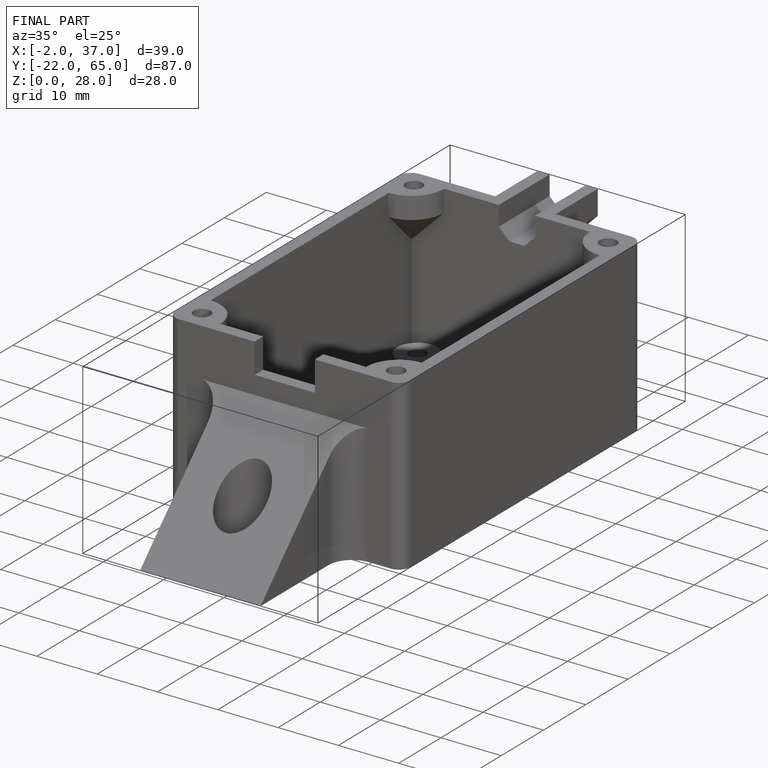
[diagram: finished part — iso view with bounding-box wireframe]
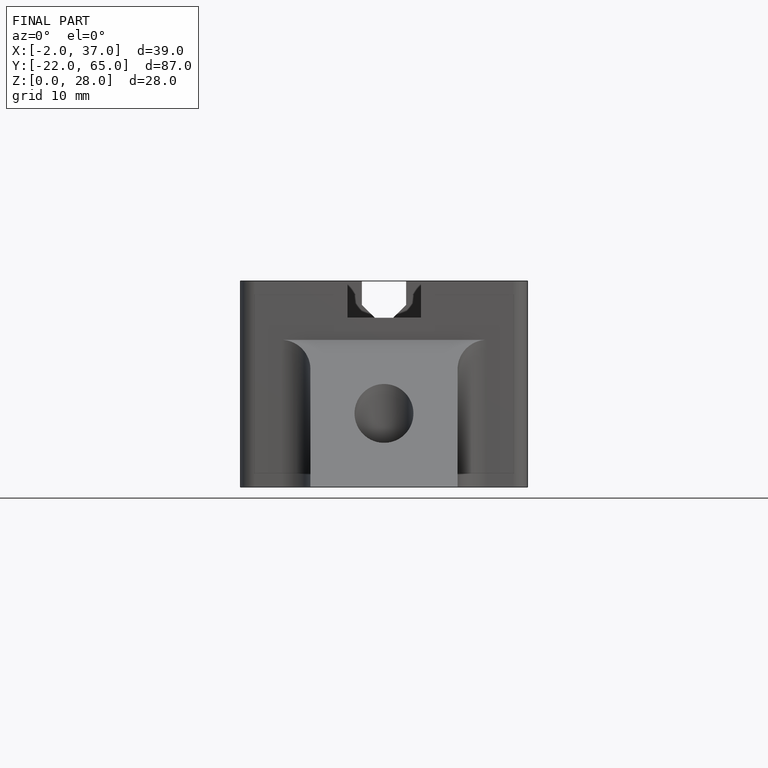
[diagram: finished part — front view with bounding-box wireframe]
